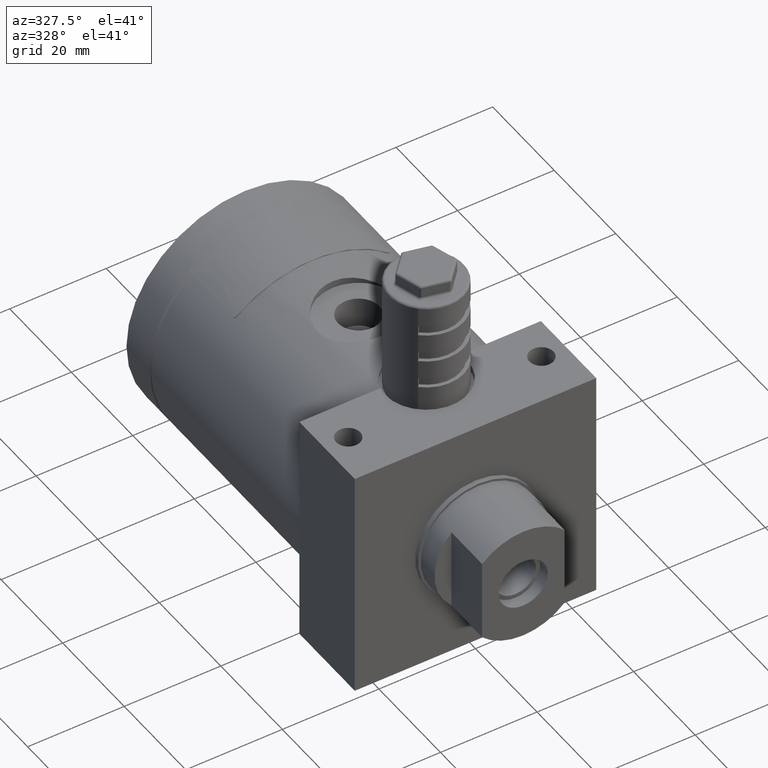
[diagram: clean part render]
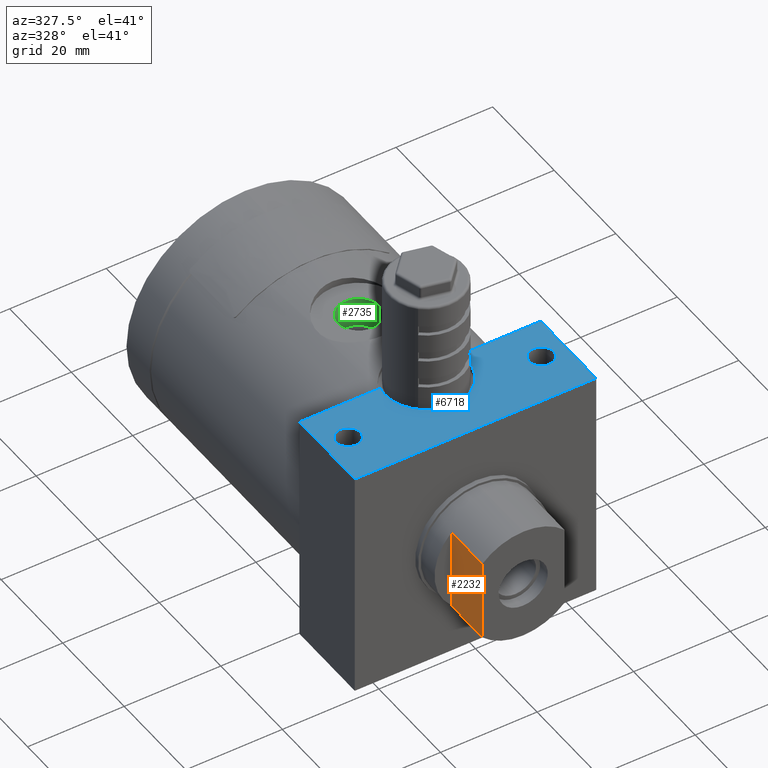
[diagram: same view with three faces highlighted in distinct colors, each labeled with its STEP entity id]
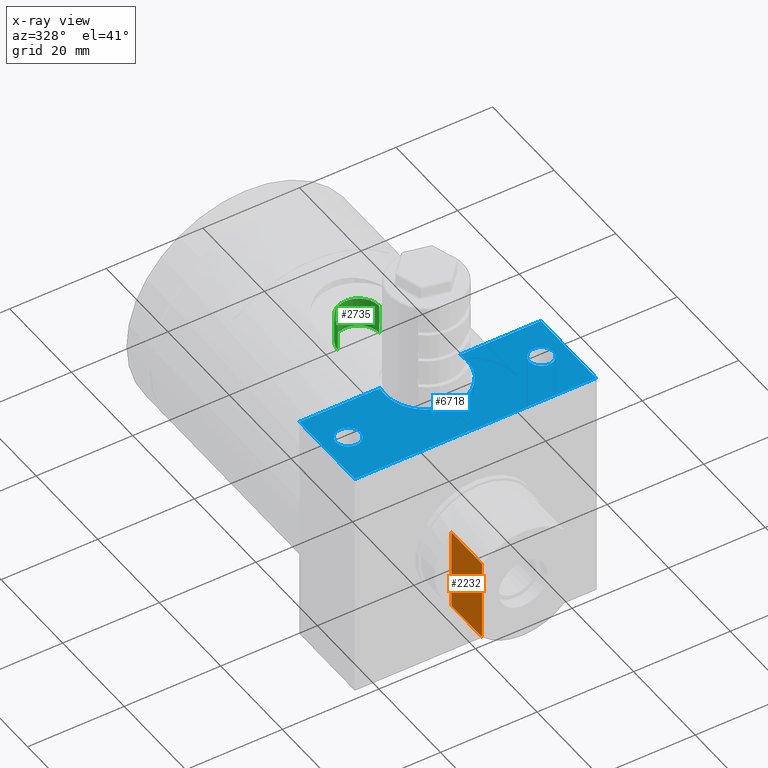
[diagram: x-ray of the same camera — body ghosted, the three highlighted faces saturated]
A machine part, auxiliary view with three faces highlighted in distinct colors.
The next image is the same camera in x-ray (body ghosted, the three faces saturated) — at least one of them is partly hidden behind the body in this view.
Their STEP definitions:

[orange] entity #2232 — the highlighted planar face has unit normal (1, 0, 0).
#25 = EDGE_CURVE ( 'NONE', #866, #3646, #1741, .T. ) ;
#145 = EDGE_CURVE ( 'NONE', #3154, #3458, #6082, .T. ) ;
#385 = CARTESIAN_POINT ( 'NONE',  ( -8.500000000000000000, -5.500000000000000000, 8.470537173048700900 ) ) ;
#676 = VECTOR ( 'NONE', #4502, 1000.000000000000000 ) ;
#866 = VERTEX_POINT ( 'NONE', #8854 ) ;
#1210 = CARTESIAN_POINT ( 'NONE',  ( -8.500000000000000000, -15.50000000000000000, -8.470537173048711600 ) ) ;
#1224 = EDGE_LOOP ( 'NONE', ( #1634, #4449, #4780, #4034 ) ) ;
#1634 = ORIENTED_EDGE ( 'NONE', *, *, #4872, .T. ) ;
#1741 = LINE ( 'NONE', #9875, #9740 ) ;
#1869 = VECTOR ( 'NONE', #10057, 1000.000000000000000 ) ;
#1934 = FACE_OUTER_BOUND ( 'NONE', #1224, .T. ) ;
#2052 = CARTESIAN_POINT ( 'NONE',  ( -8.500000000000000000, -15.50000000000000000, 8.470537173048700900 ) ) ;
#2232 = ADVANCED_FACE ( 'NONE', ( #1934 ), #10514, .F. ) ;
#2356 = LINE ( 'NONE', #10411, #4984 ) ;
#2358 = AXIS2_PLACEMENT_3D ( 'NONE', #385, #8883, #7198 ) ;
#3154 = VERTEX_POINT ( 'NONE', #8858 ) ;
#3458 = VERTEX_POINT ( 'NONE', #6849 ) ;
#3646 = VERTEX_POINT ( 'NONE', #1210 ) ;
#4034 = ORIENTED_EDGE ( 'NONE', *, *, #25, .T. ) ;
#4449 = ORIENTED_EDGE ( 'NONE', *, *, #145, .F. ) ;
#4502 = DIRECTION ( 'NONE',  ( 0.0000000000000000000, 0.0000000000000000000, 1.000000000000000000 ) ) ;
#4780 = ORIENTED_EDGE ( 'NONE', *, *, #7582, .F. ) ;
#4872 = EDGE_CURVE ( 'NONE', #3646, #3458, #7793, .T. ) ;
#4984 = VECTOR ( 'NONE', #5442, 1000.000000000000000 ) ;
#4987 = DIRECTION ( 'NONE',  ( 0.0000000000000000000, -1.000000000000000000, 0.0000000000000000000 ) ) ;
#5442 = DIRECTION ( 'NONE',  ( 0.0000000000000000000, 0.0000000000000000000, 1.000000000000000000 ) ) ;
#6082 = LINE ( 'NONE', #10322, #1869 ) ;
#6849 = CARTESIAN_POINT ( 'NONE',  ( -8.500000000000000000, -15.50000000000000000, 8.470537173048700900 ) ) ;
#7198 = DIRECTION ( 'NONE',  ( 0.0000000000000000000, 0.0000000000000000000, -1.000000000000000000 ) ) ;
#7582 = EDGE_CURVE ( 'NONE', #866, #3154, #2356, .T. ) ;
#7793 = LINE ( 'NONE', #2052, #676 ) ;
#8854 = CARTESIAN_POINT ( 'NONE',  ( -8.500000000000000000, -5.500000000000000000, -8.470537173048711600 ) ) ;
#8858 = CARTESIAN_POINT ( 'NONE',  ( -8.500000000000000000, -5.500000000000000000, 8.470537173048700900 ) ) ;
#8883 = DIRECTION ( 'NONE',  ( 1.000000000000000000, 0.0000000000000000000, 0.0000000000000000000 ) ) ;
#9740 = VECTOR ( 'NONE', #4987, 1000.000000000000000 ) ;
#9875 = CARTESIAN_POINT ( 'NONE',  ( -8.500000000000000000, -5.500000000000000000, -8.470537173048711600 ) ) ;
#10057 = DIRECTION ( 'NONE',  ( 0.0000000000000000000, -1.000000000000000000, 0.0000000000000000000 ) ) ;
#10322 = CARTESIAN_POINT ( 'NONE',  ( -8.500000000000000000, -5.500000000000000000, 8.470537173048700900 ) ) ;
#10411 = CARTESIAN_POINT ( 'NONE',  ( -8.500000000000000000, -5.500000000000000000, 8.470537173048700900 ) ) ;
#10514 = PLANE ( 'NONE',  #2358 ) ;

[blue] entity #6718 — the highlighted planar face has unit normal (-0, 0, -1).
#81 = CARTESIAN_POINT ( 'NONE',  ( 17.50000000000000000, 10.00000000000000000, 24.50000000000000000 ) ) ;
#133 = CARTESIAN_POINT ( 'NONE',  ( -6.938893903907080500E-017, 16.00000000000000000, 24.50000000000000000 ) ) ;
#256 = CARTESIAN_POINT ( 'NONE',  ( -22.50000000000000000, 10.00000000000000000, 24.50000000000000000 ) ) ;
#267 = AXIS2_PLACEMENT_3D ( 'NONE', #133, #8764, #9330 ) ;
#366 = VERTEX_POINT ( 'NONE', #4712 ) ;
#367 = EDGE_CURVE ( 'NONE', #1757, #5535, #9606, .T. ) ;
#402 = AXIS2_PLACEMENT_3D ( 'NONE', #4914, #896, #6881 ) ;
#486 = DIRECTION ( 'NONE',  ( 1.000000000000000000, 0.0000000000000000000, 0.0000000000000000000 ) ) ;
#532 = VERTEX_POINT ( 'NONE', #10730 ) ;
#712 = ORIENTED_EDGE ( 'NONE', *, *, #5348, .F. ) ;
#735 = CIRCLE ( 'NONE', #267, 8.500000000000000000 ) ;
#749 = ORIENTED_EDGE ( 'NONE', *, *, #3703, .F. ) ;
#785 = ORIENTED_EDGE ( 'NONE', *, *, #6150, .F. ) ;
#896 = DIRECTION ( 'NONE',  ( 0.0000000000000000000, 0.0000000000000000000, 1.000000000000000000 ) ) ;
#1124 = CARTESIAN_POINT ( 'NONE',  ( 8.500000000000000000, 16.00000000000000000, 24.50000000000000000 ) ) ;
#1176 = LINE ( 'NONE', #9711, #10013 ) ;
#1310 = LINE ( 'NONE', #5138, #6075 ) ;
#1328 = DIRECTION ( 'NONE',  ( 0.0000000000000000000, -1.000000000000000000, 0.0000000000000000000 ) ) ;
#1383 = CIRCLE ( 'NONE', #6104, 2.499999999999998700 ) ;
#1504 = VERTEX_POINT ( 'NONE', #4903 ) ;
#1667 = DIRECTION ( 'NONE',  ( 0.0000000000000000000, 0.0000000000000000000, 1.000000000000000000 ) ) ;
#1693 = DIRECTION ( 'NONE',  ( 0.0000000000000000000, 0.0000000000000000000, 1.000000000000000000 ) ) ;
#1757 = VERTEX_POINT ( 'NONE', #1124 ) ;
#1983 = EDGE_CURVE ( 'NONE', #9472, #7313, #2462, .T. ) ;
#1994 = EDGE_CURVE ( 'NONE', #3350, #532, #1383, .T. ) ;
#2095 = CIRCLE ( 'NONE', #9984, 2.499999999999998700 ) ;
#2239 = FACE_OUTER_BOUND ( 'NONE', #9335, .T. ) ;
#2462 = CIRCLE ( 'NONE', #4966, 2.499999999999998700 ) ;
#2691 = CARTESIAN_POINT ( 'NONE',  ( -25.00000000000000000, 18.00000000000000000, 24.50000000000000000 ) ) ;
#2712 = CARTESIAN_POINT ( 'NONE',  ( -8.261355820929150400, 18.00000000000000000, 24.50000000000000000 ) ) ;
#2952 = ORIENTED_EDGE ( 'NONE', *, *, #367, .F. ) ;
#3008 = CARTESIAN_POINT ( 'NONE',  ( -25.00000000000000000, 0.0000000000000000000, 24.50000000000000000 ) ) ;
#3083 = DIRECTION ( 'NONE',  ( 1.000000000000000000, 0.0000000000000000000, -1.387778780781445900E-016 ) ) ;
#3241 = DIRECTION ( 'NONE',  ( 0.0000000000000000000, 0.0000000000000000000, 1.000000000000000000 ) ) ;
#3288 = FACE_BOUND ( 'NONE', #8501, .T. ) ;
#3315 = VERTEX_POINT ( 'NONE', #10056 ) ;
#3350 = VERTEX_POINT ( 'NONE', #256 ) ;
#3703 = EDGE_CURVE ( 'NONE', #7313, #9472, #4770, .T. ) ;
#3712 = CARTESIAN_POINT ( 'NONE',  ( -20.00000000000000000, 10.00000000000000000, 24.50000000000000000 ) ) ;
#3737 = EDGE_CURVE ( 'NONE', #5988, #7854, #7414, .T. ) ;
#3819 = DIRECTION ( 'NONE',  ( 0.0000000000000000000, 0.0000000000000000000, 1.000000000000000000 ) ) ;
#3898 = DIRECTION ( 'NONE',  ( 0.0000000000000000000, 0.0000000000000000000, 1.000000000000000000 ) ) ;
#4022 = ORIENTED_EDGE ( 'NONE', *, *, #9031, .T. ) ;
#4029 = DIRECTION ( 'NONE',  ( 0.0000000000000000000, -1.000000000000000000, 0.0000000000000000000 ) ) ;
#4243 = ORIENTED_EDGE ( 'NONE', *, *, #4488, .F. ) ;
#4312 = DIRECTION ( 'NONE',  ( -1.000000000000000000, 0.0000000000000000000, -4.163336342344340000E-016 ) ) ;
#4488 = EDGE_CURVE ( 'NONE', #10117, #5988, #9892, .T. ) ;
#4554 = AXIS2_PLACEMENT_3D ( 'NONE', #6659, #1693, #7577 ) ;
#4712 = CARTESIAN_POINT ( 'NONE',  ( 25.00000000000000000, 18.00000000000000000, 24.50000000000000000 ) ) ;
#4770 = CIRCLE ( 'NONE', #4554, 2.499999999999998700 ) ;
#4817 = LINE ( 'NONE', #9074, #10712 ) ;
#4903 = CARTESIAN_POINT ( 'NONE',  ( 25.00000000000000000, 0.0000000000000000000, 24.50000000000000000 ) ) ;
#4914 = CARTESIAN_POINT ( 'NONE',  ( -6.938893903907080500E-017, 16.00000000000000000, 24.50000000000000000 ) ) ;
#4960 = CARTESIAN_POINT ( 'NONE',  ( 20.00000000000000000, 10.00000000000000000, 24.50000000000000000 ) ) ;
#4966 = AXIS2_PLACEMENT_3D ( 'NONE', #4960, #1667, #7472 ) ;
#5121 = AXIS2_PLACEMENT_3D ( 'NONE', #5558, #7256, #8127 ) ;
#5138 = CARTESIAN_POINT ( 'NONE',  ( 25.00000000000000000, 18.00000000000000000, 24.50000000000000000 ) ) ;
#5212 = EDGE_CURVE ( 'NONE', #366, #5535, #1310, .T. ) ;
#5214 = VECTOR ( 'NONE', #3083, 1000.000000000000000 ) ;
#5348 = EDGE_CURVE ( 'NONE', #366, #1504, #1176, .T. ) ;
#5535 = VERTEX_POINT ( 'NONE', #7877 ) ;
#5558 = CARTESIAN_POINT ( 'NONE',  ( -25.00000000000000000, 67.00000000000000000, 24.50000000000000000 ) ) ;
#5590 = ORIENTED_EDGE ( 'NONE', *, *, #3737, .F. ) ;
#5622 = AXIS2_PLACEMENT_3D ( 'NONE', #6493, #3898, #486 ) ;
#5734 = ORIENTED_EDGE ( 'NONE', *, *, #8962, .T. ) ;
#5988 = VERTEX_POINT ( 'NONE', #2712 ) ;
#6075 = VECTOR ( 'NONE', #4312, 1000.000000000000000 ) ;
#6096 = VECTOR ( 'NONE', #8281, 1000.000000000000000 ) ;
#6104 = AXIS2_PLACEMENT_3D ( 'NONE', #10834, #3241, #7550 ) ;
#6150 = EDGE_CURVE ( 'NONE', #532, #3350, #2095, .T. ) ;
#6367 = ORIENTED_EDGE ( 'NONE', *, *, #1983, .F. ) ;
#6493 = CARTESIAN_POINT ( 'NONE',  ( -6.938893903907080500E-017, 16.00000000000000000, 24.50000000000000000 ) ) ;
#6659 = CARTESIAN_POINT ( 'NONE',  ( 20.00000000000000000, 10.00000000000000000, 24.50000000000000000 ) ) ;
#6718 = ADVANCED_FACE ( 'NONE', ( #3288, #7893, #2239 ), #7107, .F. ) ;
#6881 = DIRECTION ( 'NONE',  ( 1.000000000000000000, 0.0000000000000000000, 0.0000000000000000000 ) ) ;
#7107 = PLANE ( 'NONE',  #5121 ) ;
#7256 = DIRECTION ( 'NONE',  ( -1.387778780781445900E-016, 0.0000000000000000000, -1.000000000000000000 ) ) ;
#7313 = VERTEX_POINT ( 'NONE', #10732 ) ;
#7414 = CIRCLE ( 'NONE', #402, 8.500000000000000000 ) ;
#7463 = LINE ( 'NONE', #3008, #5214 ) ;
#7472 = DIRECTION ( 'NONE',  ( 1.000000000000000000, 0.0000000000000000000, 0.0000000000000000000 ) ) ;
#7476 = CARTESIAN_POINT ( 'NONE',  ( -25.00000000000000000, 18.00000000000000000, 24.50000000000000000 ) ) ;
#7550 = DIRECTION ( 'NONE',  ( 1.000000000000000000, 0.0000000000000000000, 0.0000000000000000000 ) ) ;
#7577 = DIRECTION ( 'NONE',  ( 1.000000000000000000, 0.0000000000000000000, 0.0000000000000000000 ) ) ;
#7584 = ORIENTED_EDGE ( 'NONE', *, *, #5212, .T. ) ;
#7593 = ORIENTED_EDGE ( 'NONE', *, *, #8892, .F. ) ;
#7854 = VERTEX_POINT ( 'NONE', #9304 ) ;
#7877 = CARTESIAN_POINT ( 'NONE',  ( 8.261355820929150400, 18.00000000000000000, 24.50000000000000000 ) ) ;
#7893 = FACE_BOUND ( 'NONE', #7953, .T. ) ;
#7953 = EDGE_LOOP ( 'NONE', ( #785, #10793 ) ) ;
#8127 = DIRECTION ( 'NONE',  ( -1.000000000000000000, 0.0000000000000000000, 1.387778780781445900E-016 ) ) ;
#8281 = DIRECTION ( 'NONE',  ( 1.000000000000000000, 0.0000000000000000000, -4.163336342344340000E-016 ) ) ;
#8501 = EDGE_LOOP ( 'NONE', ( #749, #6367 ) ) ;
#8764 = DIRECTION ( 'NONE',  ( 0.0000000000000000000, 0.0000000000000000000, 1.000000000000000000 ) ) ;
#8871 = DIRECTION ( 'NONE',  ( 1.000000000000000000, 0.0000000000000000000, 0.0000000000000000000 ) ) ;
#8892 = EDGE_CURVE ( 'NONE', #7854, #1757, #735, .T. ) ;
#8962 = EDGE_CURVE ( 'NONE', #3315, #1504, #7463, .T. ) ;
#9031 = EDGE_CURVE ( 'NONE', #10117, #3315, #4817, .T. ) ;
#9074 = CARTESIAN_POINT ( 'NONE',  ( -25.00000000000000000, 67.00000000000000000, 24.50000000000000000 ) ) ;
#9304 = CARTESIAN_POINT ( 'NONE',  ( -8.500000000000000000, 16.00000000000000000, 24.50000000000000000 ) ) ;
#9330 = DIRECTION ( 'NONE',  ( 1.000000000000000000, 0.0000000000000000000, 0.0000000000000000000 ) ) ;
#9335 = EDGE_LOOP ( 'NONE', ( #7584, #2952, #7593, #5590, #4243, #4022, #5734, #712 ) ) ;
#9472 = VERTEX_POINT ( 'NONE', #81 ) ;
#9606 = CIRCLE ( 'NONE', #5622, 8.500000000000000000 ) ;
#9711 = CARTESIAN_POINT ( 'NONE',  ( 25.00000000000000000, 67.00000000000000000, 24.50000000000000000 ) ) ;
#9892 = LINE ( 'NONE', #7476, #6096 ) ;
#9984 = AXIS2_PLACEMENT_3D ( 'NONE', #3712, #3819, #8871 ) ;
#10013 = VECTOR ( 'NONE', #1328, 1000.000000000000000 ) ;
#10056 = CARTESIAN_POINT ( 'NONE',  ( -25.00000000000000000, 0.0000000000000000000, 24.50000000000000000 ) ) ;
#10117 = VERTEX_POINT ( 'NONE', #2691 ) ;
#10712 = VECTOR ( 'NONE', #4029, 1000.000000000000000 ) ;
#10730 = CARTESIAN_POINT ( 'NONE',  ( -17.50000000000000000, 10.00000000000000000, 24.50000000000000000 ) ) ;
#10732 = CARTESIAN_POINT ( 'NONE',  ( 22.50000000000000000, 10.00000000000000000, 24.50000000000000000 ) ) ;
#10793 = ORIENTED_EDGE ( 'NONE', *, *, #1994, .F. ) ;
#10834 = CARTESIAN_POINT ( 'NONE',  ( -20.00000000000000000, 10.00000000000000000, 24.50000000000000000 ) ) ;

[green] entity #2735 — the highlighted cylindrical surface (edge-blend (fillet) strip) has radius 4.283 mm, axis along (0, 0, 1).
#754 = DIRECTION ( 'NONE',  ( 1.000000000000000000, 0.0000000000000000000, 0.0000000000000000000 ) ) ;
#1104 = EDGE_LOOP ( 'NONE', ( #9362, #8727, #10704, #5610 ) ) ;
#1106 = CYLINDRICAL_SURFACE ( 'NONE', #5258, 4.283000000000000400 ) ;
#1486 = DIRECTION ( 'NONE',  ( 1.000000000000000000, 0.0000000000000000000, 0.0000000000000000000 ) ) ;
#1636 = CIRCLE ( 'NONE', #3468, 4.283000000000000400 ) ;
#1712 = EDGE_CURVE ( 'NONE', #6945, #4260, #2473, .T. ) ;
#1824 = DIRECTION ( 'NONE',  ( 0.0000000000000000000, 0.0000000000000000000, 1.000000000000000000 ) ) ;
#1945 = VECTOR ( 'NONE', #3494, 1000.000000000000000 ) ;
#2456 = CARTESIAN_POINT ( 'NONE',  ( 0.0000000000000000000, 38.00000000000000000, 23.00000000000000000 ) ) ;
#2473 = LINE ( 'NONE', #4337, #1945 ) ;
#2735 = ADVANCED_FACE ( 'NONE', ( #8229 ), #1106, .F. ) ;
#3037 = CIRCLE ( 'NONE', #6892, 4.283000000000000400 ) ;
#3468 = AXIS2_PLACEMENT_3D ( 'NONE', #3950, #3987, #1486 ) ;
#3494 = DIRECTION ( 'NONE',  ( 0.0000000000000000000, 0.0000000000000000000, 1.000000000000000000 ) ) ;
#3814 = DIRECTION ( 'NONE',  ( 0.0000000000000000000, 0.0000000000000000000, 1.000000000000000000 ) ) ;
#3950 = CARTESIAN_POINT ( 'NONE',  ( 0.0000000000000000000, 38.00000000000000000, 16.77900000000000000 ) ) ;
#3987 = DIRECTION ( 'NONE',  ( 0.0000000000000000000, 0.0000000000000000000, 1.000000000000000000 ) ) ;
#4260 = VERTEX_POINT ( 'NONE', #4973 ) ;
#4337 = CARTESIAN_POINT ( 'NONE',  ( 4.283000000000000400, 38.00000000000000000, 24.50000000000000000 ) ) ;
#4668 = DIRECTION ( 'NONE',  ( 1.000000000000000000, 0.0000000000000000000, 0.0000000000000000000 ) ) ;
#4687 = CARTESIAN_POINT ( 'NONE',  ( 4.283000000000000400, 38.00000000000000000, 16.77900000000000000 ) ) ;
#4973 = CARTESIAN_POINT ( 'NONE',  ( 4.283000000000000400, 38.00000000000000000, 23.00000000000000000 ) ) ;
#5258 = AXIS2_PLACEMENT_3D ( 'NONE', #10615, #3814, #4668 ) ;
#5610 = ORIENTED_EDGE ( 'NONE', *, *, #7016, .F. ) ;
#6066 = LINE ( 'NONE', #6870, #10765 ) ;
#6180 = VERTEX_POINT ( 'NONE', #8831 ) ;
#6508 = EDGE_CURVE ( 'NONE', #8738, #6180, #6066, .T. ) ;
#6870 = CARTESIAN_POINT ( 'NONE',  ( -4.283000000000000400, 38.00000000000000000, 24.50000000000000000 ) ) ;
#6892 = AXIS2_PLACEMENT_3D ( 'NONE', #2456, #9952, #754 ) ;
#6945 = VERTEX_POINT ( 'NONE', #4687 ) ;
#7016 = EDGE_CURVE ( 'NONE', #6180, #4260, #3037, .T. ) ;
#7558 = CARTESIAN_POINT ( 'NONE',  ( -4.283000000000000400, 38.00000000000000000, 16.77900000000000000 ) ) ;
#8229 = FACE_OUTER_BOUND ( 'NONE', #1104, .T. ) ;
#8727 = ORIENTED_EDGE ( 'NONE', *, *, #10571, .F. ) ;
#8738 = VERTEX_POINT ( 'NONE', #7558 ) ;
#8831 = CARTESIAN_POINT ( 'NONE',  ( -4.283000000000000400, 38.00000000000000000, 23.00000000000000000 ) ) ;
#9362 = ORIENTED_EDGE ( 'NONE', *, *, #6508, .F. ) ;
#9952 = DIRECTION ( 'NONE',  ( -0.0000000000000000000, -0.0000000000000000000, -1.000000000000000000 ) ) ;
#10571 = EDGE_CURVE ( 'NONE', #6945, #8738, #1636, .T. ) ;
#10615 = CARTESIAN_POINT ( 'NONE',  ( 0.0000000000000000000, 38.00000000000000000, 24.50000000000000000 ) ) ;
#10704 = ORIENTED_EDGE ( 'NONE', *, *, #1712, .T. ) ;
#10765 = VECTOR ( 'NONE', #1824, 1000.000000000000000 ) ;